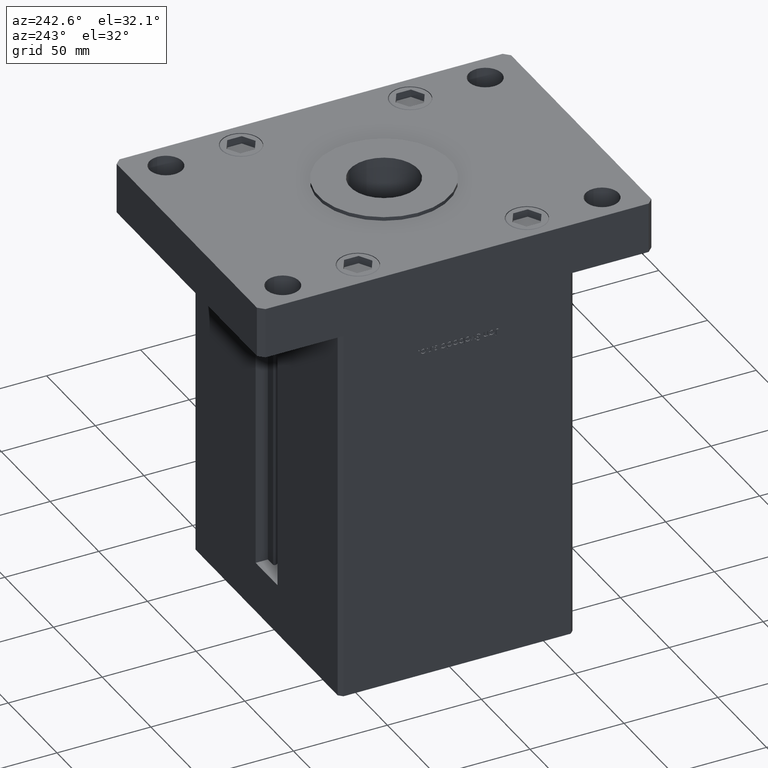
[diagram: clean part render]
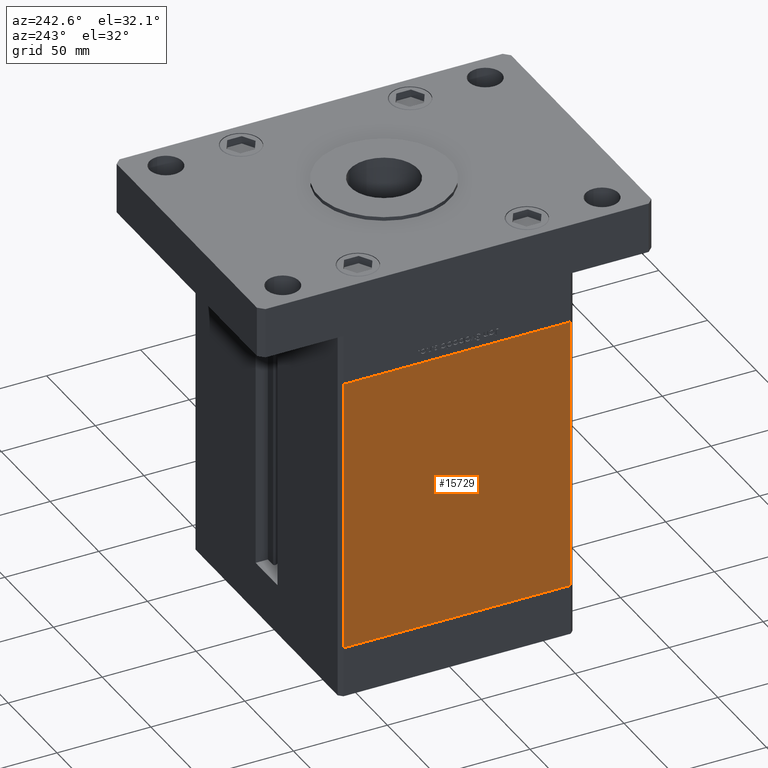
[diagram: same view with one face highlighted and labeled with its STEP entity id]
A machine part, auxiliary view. The second image highlights one B-rep face of the part: STEP entity #15729.
In plain terms, the highlighted planar face has unit normal (1, 0, 0).
Its self-contained STEP definition (entity closure, byte-faithful):
#198 = FACE_OUTER_BOUND ( 'NONE', #28500, .T. ) ;
#500 = VECTOR ( 'NONE', #27778, 1000.000000000000000 ) ;
#1308 = DIRECTION ( 'NONE',  ( 2.293849224432141861E-16, -1.000000000000000000, 0.000000000000000000 ) ) ;
#1572 = LINE ( 'NONE', #5114, #41536 ) ;
#3463 = DIRECTION ( 'NONE',  ( 1.000000000000000000, 2.293849224432141861E-16, -0.000000000000000000 ) ) ;
#5114 = CARTESIAN_POINT ( 'NONE',  ( -75.00000000000001421, 60.50000000000000000, 0.000000000000000000 ) ) ;
#9960 = CARTESIAN_POINT ( 'NONE',  ( -74.99999999999998579, -60.50000000000000000, 147.0000000000000000 ) ) ;
#10462 = VERTEX_POINT ( 'NONE', #15079 ) ;
#11830 = EDGE_CURVE ( 'NONE', #10462, #39717, #39078, .T. ) ;
#14199 = CARTESIAN_POINT ( 'NONE',  ( -75.00000000000001421, 60.50000000000000000, 0.000000000000000000 ) ) ;
#14422 = ORIENTED_EDGE ( 'NONE', *, *, #11830, .F. ) ;
#15079 = CARTESIAN_POINT ( 'NONE',  ( -75.00000000000001421, 60.50000000000000000, 147.0000000000000000 ) ) ;
#15729 = ADVANCED_FACE ( 'NONE', ( #198 ), #28656, .F. ) ;
#16472 = CARTESIAN_POINT ( 'NONE',  ( -75.00000000000001421, 60.50000000000000000, 147.0000000000000000 ) ) ;
#16831 = DIRECTION ( 'NONE',  ( -0.000000000000000000, -0.000000000000000000, -1.000000000000000000 ) ) ;
#17589 = AXIS2_PLACEMENT_3D ( 'NONE', #16472, #3463, #37331 ) ;
#18006 = ORIENTED_EDGE ( 'NONE', *, *, #34240, .T. ) ;
#19652 = LINE ( 'NONE', #36182, #500 ) ;
#21219 = ORIENTED_EDGE ( 'NONE', *, *, #47395, .T. ) ;
#25098 = EDGE_CURVE ( 'NONE', #39717, #40461, #46363, .T. ) ;
#27778 = DIRECTION ( 'NONE',  ( -0.000000000000000000, -0.000000000000000000, -1.000000000000000000 ) ) ;
#28500 = EDGE_LOOP ( 'NONE', ( #21219, #42719, #14422, #18006 ) ) ;
#28656 = PLANE ( 'NONE',  #17589 ) ;
#33900 = CARTESIAN_POINT ( 'NONE',  ( -74.99999999999998579, -60.50000000000000000, 147.0000000000000000 ) ) ;
#34240 = EDGE_CURVE ( 'NONE', #10462, #36793, #19652, .T. ) ;
#35017 = CARTESIAN_POINT ( 'NONE',  ( -75.00000000000001421, 60.50000000000000000, 147.0000000000000000 ) ) ;
#36182 = CARTESIAN_POINT ( 'NONE',  ( -75.00000000000001421, 60.50000000000000000, 147.0000000000000000 ) ) ;
#36793 = VERTEX_POINT ( 'NONE', #14199 ) ;
#37331 = DIRECTION ( 'NONE',  ( -2.293849224432141861E-16, 1.000000000000000000, 0.000000000000000000 ) ) ;
#38284 = DIRECTION ( 'NONE',  ( 2.293849224432141861E-16, -1.000000000000000000, 0.000000000000000000 ) ) ;
#39078 = LINE ( 'NONE', #35017, #40015 ) ;
#39717 = VERTEX_POINT ( 'NONE', #9960 ) ;
#40015 = VECTOR ( 'NONE', #38284, 1000.000000000000000 ) ;
#40461 = VERTEX_POINT ( 'NONE', #42472 ) ;
#41536 = VECTOR ( 'NONE', #1308, 1000.000000000000000 ) ;
#42472 = CARTESIAN_POINT ( 'NONE',  ( -74.99999999999998579, -60.50000000000000000, 0.000000000000000000 ) ) ;
#42719 = ORIENTED_EDGE ( 'NONE', *, *, #25098, .F. ) ;
#44812 = VECTOR ( 'NONE', #16831, 1000.000000000000000 ) ;
#46363 = LINE ( 'NONE', #33900, #44812 ) ;
#47395 = EDGE_CURVE ( 'NONE', #36793, #40461, #1572, .T. ) ;